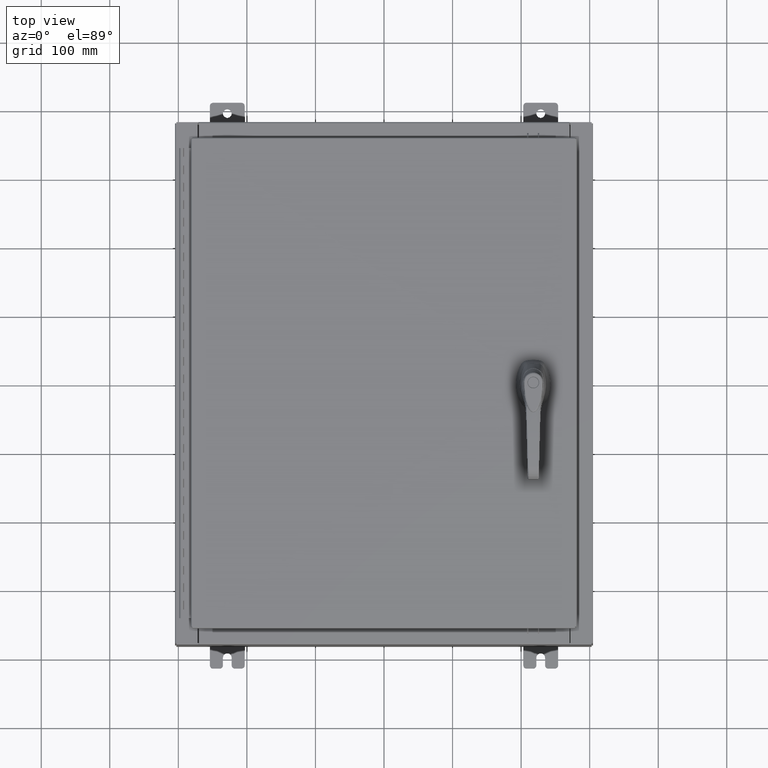
[diagram: clean part render]
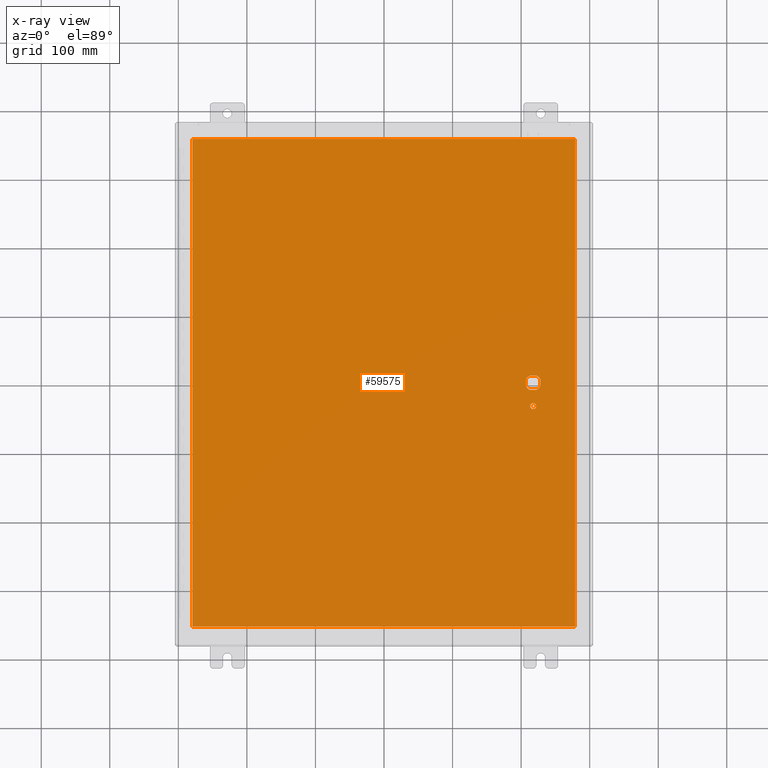
[diagram: x-ray — body ghosted, one internal face saturated and labeled with its STEP entity id]
A machine part, top view, then the same camera in x-ray: the body is ghosted and one INTERNAL B-rep face — a face not visible from any outside direction — is saturated and labeled: STEP entity #59575.
In plain terms, the highlighted planar face has unit normal (0, 0, -1).
Its self-contained STEP definition (entity closure, byte-faithful):
#3461 = DIRECTION ( 'NONE',  ( 1.000000000000000000, -0.0000000000000000000, -0.0000000000000000000 ) ) ;
#3526 = VERTEX_POINT ( 'NONE', #42031 ) ;
#4470 = ORIENTED_EDGE ( 'NONE', *, *, #36736, .T. ) ;
#4782 = DIRECTION ( 'NONE',  ( 0.0000000000000000000, -1.000000000000000000, 0.0000000000000000000 ) ) ;
#4838 = DIRECTION ( 'NONE',  ( 0.0000000000000000000, 0.0000000000000000000, -1.000000000000000000 ) ) ;
#7471 = EDGE_LOOP ( 'NONE', ( #86958, #76521, #91623, #48466, #51248, #21490, #71872, #79646 ) ) ;
#7579 = VECTOR ( 'NONE', #90998, 39.37007874015748100 ) ;
#10252 = CARTESIAN_POINT ( 'NONE',  ( 8.577999999999999400, 0.0000000000000000000, -0.07470000000000003000 ) ) ;
#10349 = DIRECTION ( 'NONE',  ( -0.0000000000000000000, -0.0000000000000000000, 1.000000000000000000 ) ) ;
#11268 = EDGE_CURVE ( 'NONE', #3526, #70370, #73708, .T. ) ;
#11701 = CARTESIAN_POINT ( 'NONE',  ( 8.577999999999999400, 0.0000000000000000000, -0.07470000000000003000 ) ) ;
#11764 = VERTEX_POINT ( 'NONE', #20033 ) ;
#11845 = CIRCLE ( 'NONE', #39202, 0.1715000000000011500 ) ;
#11931 = EDGE_CURVE ( 'NONE', #113478, #35717, #33905, .T. ) ;
#12027 = AXIS2_PLACEMENT_3D ( 'NONE', #104134, #4838, #68151 ) ;
#13245 = AXIS2_PLACEMENT_3D ( 'NONE', #71834, #17549, #80936 ) ;
#14032 = CARTESIAN_POINT ( 'NONE',  ( -10.99030000000000000, 14.00630000000000100, -0.07470000000000019700 ) ) ;
#14166 = ORIENTED_EDGE ( 'NONE', *, *, #11931, .F. ) ;
#14516 = VERTEX_POINT ( 'NONE', #76639 ) ;
#16302 = LINE ( 'NONE', #22786, #109784 ) ;
#17549 = DIRECTION ( 'NONE',  ( -0.0000000000000000000, -0.0000000000000000000, 1.000000000000000000 ) ) ;
#18528 = CARTESIAN_POINT ( 'NONE',  ( 8.980999999999925300, 2.450686610769032800E-014, -0.07470000000000003000 ) ) ;
#19318 = DIRECTION ( 'NONE',  ( -1.000000000000000000, 8.881784197001256300E-016, 0.0000000000000000000 ) ) ;
#20033 = CARTESIAN_POINT ( 'NONE',  ( 8.406499999999999400, -1.338000000000000100, -0.07470000000000003000 ) ) ;
#20782 = DIRECTION ( 'NONE',  ( -1.000000000000000000, 1.776356839400251300E-015, 0.0000000000000000000 ) ) ;
#21490 = ORIENTED_EDGE ( 'NONE', *, *, #38106, .T. ) ;
#21966 = CIRCLE ( 'NONE', #113293, 0.4499999999999156900 ) ;
#22786 = CARTESIAN_POINT ( 'NONE',  ( 0.0000000000000000000, -0.4029999999999252000, -0.07470000000000003000 ) ) ;
#23723 = EDGE_CURVE ( 'NONE', #70370, #77574, #82563, .T. ) ;
#24047 = EDGE_CURVE ( 'NONE', #77574, #50909, #110864, .T. ) ;
#25444 = DIRECTION ( 'NONE',  ( -0.0000000000000000000, -0.0000000000000000000, 1.000000000000000000 ) ) ;
#28032 = VECTOR ( 'NONE', #95582, 39.37007874015748100 ) ;
#29426 = LINE ( 'NONE', #68094, #98845 ) ;
#29720 = LINE ( 'NONE', #101884, #75086 ) ;
#30363 = VERTEX_POINT ( 'NONE', #92439 ) ;
#30446 = EDGE_CURVE ( 'NONE', #95265, #113478, #73434, .T. ) ;
#30942 = ORIENTED_EDGE ( 'NONE', *, *, #42917, .F. ) ;
#31600 = LINE ( 'NONE', #18528, #7579 ) ;
#33866 = AXIS2_PLACEMENT_3D ( 'NONE', #10252, #73600, #19318 ) ;
#33905 = LINE ( 'NONE', #48482, #36714 ) ;
#35717 = VERTEX_POINT ( 'NONE', #51421 ) ;
#35942 = DIRECTION ( 'NONE',  ( -1.000000000000000000, 0.0000000000000000000, 0.0000000000000000000 ) ) ;
#36642 = CARTESIAN_POINT ( 'NONE',  ( -10.99030000000000000, -14.00629999999999600, -0.07470000000000000300 ) ) ;
#36714 = VECTOR ( 'NONE', #3461, 39.37007874015748100 ) ;
#36736 = EDGE_CURVE ( 'NONE', #11764, #30363, #79222, .T. ) ;
#38106 = EDGE_CURVE ( 'NONE', #50909, #14516, #29426, .T. ) ;
#38352 = FACE_OUTER_BOUND ( 'NONE', #70238, .T. ) ;
#39149 = CARTESIAN_POINT ( 'NONE',  ( 8.577999999999999400, -1.338000000000000100, -0.07470000000000003000 ) ) ;
#39202 = AXIS2_PLACEMENT_3D ( 'NONE', #64594, #10349, #73705 ) ;
#42031 = CARTESIAN_POINT ( 'NONE',  ( 8.980999999999925300, 0.2002273707563080300, -0.07470000000000003000 ) ) ;
#42917 = EDGE_CURVE ( 'NONE', #85347, #95265, #65711, .T. ) ;
#43050 = EDGE_CURVE ( 'NONE', #30363, #11764, #11845, .T. ) ;
#43609 = CARTESIAN_POINT ( 'NONE',  ( 8.778227370756310300, 0.4029999999999250300, -0.07470000000000003000 ) ) ;
#43670 = CARTESIAN_POINT ( 'NONE',  ( 8.980999999999925300, -0.2002273707563075900, -0.07470000000000003000 ) ) ;
#48252 = DIRECTION ( 'NONE',  ( -1.000000000000000000, 0.0000000000000000000, 0.0000000000000000000 ) ) ;
#48466 = ORIENTED_EDGE ( 'NONE', *, *, #23723, .T. ) ;
#48482 = CARTESIAN_POINT ( 'NONE',  ( -10.99029999999999600, -14.00629999999999800, -0.07470000000000019700 ) ) ;
#48742 = AXIS2_PLACEMENT_3D ( 'NONE', #39149, #102516, #48252 ) ;
#50074 = DIRECTION ( 'NONE',  ( 1.000000000000000000, 0.0000000000000000000, 0.0000000000000000000 ) ) ;
#50909 = VERTEX_POINT ( 'NONE', #97767 ) ;
#51248 = ORIENTED_EDGE ( 'NONE', *, *, #24047, .T. ) ;
#51421 = CARTESIAN_POINT ( 'NONE',  ( 10.99030000000000000, -14.00629999999999800, -0.07470000000000000300 ) ) ;
#56459 = VERTEX_POINT ( 'NONE', #83964 ) ;
#56653 = EDGE_CURVE ( 'NONE', #14516, #84983, #62026, .T. ) ;
#56956 = ORIENTED_EDGE ( 'NONE', *, *, #115427, .F. ) ;
#59575 = ADVANCED_FACE ( 'NONE', ( #86537, #38352, #62489 ), #112852, .T. ) ;
#61844 = CARTESIAN_POINT ( 'NONE',  ( 10.99030000000000000, 14.00629999999999800, -0.07470000000000019700 ) ) ;
#62026 = CIRCLE ( 'NONE', #33866, 0.4499999999999156900 ) ;
#62489 = FACE_BOUND ( 'NONE', #7471, .T. ) ;
#62855 = VECTOR ( 'NONE', #99035, 39.37007874015748100 ) ;
#64594 = CARTESIAN_POINT ( 'NONE',  ( 8.577999999999999400, -1.338000000000000100, -0.07470000000000003000 ) ) ;
#65711 = LINE ( 'NONE', #61844, #62855 ) ;
#67594 = EDGE_CURVE ( 'NONE', #56459, #73106, #21966, .T. ) ;
#68094 = CARTESIAN_POINT ( 'NONE',  ( 8.175000000000073500, 0.0000000000000000000, -0.07470000000000003000 ) ) ;
#68151 = DIRECTION ( 'NONE',  ( -1.000000000000000000, 0.0000000000000000000, -0.0000000000000000000 ) ) ;
#69529 = EDGE_CURVE ( 'NONE', #3526, #73106, #31600, .T. ) ;
#70238 = EDGE_LOOP ( 'NONE', ( #56956, #14166, #84112, #30942 ) ) ;
#70370 = VERTEX_POINT ( 'NONE', #43609 ) ;
#71834 = CARTESIAN_POINT ( 'NONE',  ( 8.577999999999999400, 0.0000000000000000000, -0.07470000000000003000 ) ) ;
#71872 = ORIENTED_EDGE ( 'NONE', *, *, #56653, .T. ) ;
#73106 = VERTEX_POINT ( 'NONE', #43670 ) ;
#73434 = LINE ( 'NONE', #14032, #28032 ) ;
#73600 = DIRECTION ( 'NONE',  ( -0.0000000000000000000, -0.0000000000000000000, 1.000000000000000000 ) ) ;
#73702 = CARTESIAN_POINT ( 'NONE',  ( 10.99030000000000000, 14.00629999999999800, -0.07470000000000000300 ) ) ;
#73705 = DIRECTION ( 'NONE',  ( -1.000000000000000000, 0.0000000000000000000, 0.0000000000000000000 ) ) ;
#73708 = CIRCLE ( 'NONE', #13245, 0.4499999999999156900 ) ;
#75062 = DIRECTION ( 'NONE',  ( -0.0000000000000000000, -0.0000000000000000000, 1.000000000000000000 ) ) ;
#75086 = VECTOR ( 'NONE', #111020, 39.37007874015748100 ) ;
#75269 = EDGE_CURVE ( 'NONE', #84983, #56459, #16302, .T. ) ;
#76521 = ORIENTED_EDGE ( 'NONE', *, *, #69529, .F. ) ;
#76639 = CARTESIAN_POINT ( 'NONE',  ( 8.175000000000073500, -0.2002273707563079800, -0.07470000000000003000 ) ) ;
#77574 = VERTEX_POINT ( 'NONE', #114289 ) ;
#79222 = CIRCLE ( 'NONE', #48742, 0.1715000000000011500 ) ;
#79646 = ORIENTED_EDGE ( 'NONE', *, *, #75269, .T. ) ;
#79718 = CARTESIAN_POINT ( 'NONE',  ( 8.577999999999999400, 0.0000000000000000000, -0.07470000000000003000 ) ) ;
#79765 = VECTOR ( 'NONE', #35942, 39.37007874015748100 ) ;
#80936 = DIRECTION ( 'NONE',  ( -1.000000000000000000, 0.0000000000000000000, 0.0000000000000000000 ) ) ;
#81133 = CARTESIAN_POINT ( 'NONE',  ( 0.0000000000000000000, 0.4029999999999252000, -0.07470000000000003000 ) ) ;
#82563 = LINE ( 'NONE', #81133, #79765 ) ;
#83964 = CARTESIAN_POINT ( 'NONE',  ( 8.778227370756310300, -0.4029999999999252000, -0.07470000000000003000 ) ) ;
#84112 = ORIENTED_EDGE ( 'NONE', *, *, #30446, .F. ) ;
#84983 = VERTEX_POINT ( 'NONE', #105792 ) ;
#85347 = VERTEX_POINT ( 'NONE', #73702 ) ;
#86537 = FACE_BOUND ( 'NONE', #113137, .T. ) ;
#86958 = ORIENTED_EDGE ( 'NONE', *, *, #67594, .T. ) ;
#88800 = DIRECTION ( 'NONE',  ( -1.000000000000000000, 0.0000000000000000000, 0.0000000000000000000 ) ) ;
#90998 = DIRECTION ( 'NONE',  ( 2.728745808672812900E-015, -1.000000000000000000, 0.0000000000000000000 ) ) ;
#91623 = ORIENTED_EDGE ( 'NONE', *, *, #11268, .T. ) ;
#92439 = CARTESIAN_POINT ( 'NONE',  ( 8.749500000000001200, -1.338000000000000100, -0.07470000000000003000 ) ) ;
#95265 = VERTEX_POINT ( 'NONE', #105872 ) ;
#95582 = DIRECTION ( 'NONE',  ( 0.0000000000000000000, -1.000000000000000000, 0.0000000000000000000 ) ) ;
#97767 = CARTESIAN_POINT ( 'NONE',  ( 8.175000000000073500, 0.2002273707563080300, -0.07470000000000003000 ) ) ;
#98845 = VECTOR ( 'NONE', #4782, 39.37007874015748100 ) ;
#99035 = DIRECTION ( 'NONE',  ( -1.000000000000000000, -0.0000000000000000000, -0.0000000000000000000 ) ) ;
#101884 = CARTESIAN_POINT ( 'NONE',  ( 10.99030000000000000, -14.00629999999999800, -0.07470000000000019700 ) ) ;
#102516 = DIRECTION ( 'NONE',  ( -0.0000000000000000000, -0.0000000000000000000, 1.000000000000000000 ) ) ;
#104134 = CARTESIAN_POINT ( 'NONE',  ( 0.0000000000000000000, 0.0000000000000000000, -0.07470000000000000300 ) ) ;
#105792 = CARTESIAN_POINT ( 'NONE',  ( 8.377772629243690300, -0.4029999999999250300, -0.07470000000000003000 ) ) ;
#105872 = CARTESIAN_POINT ( 'NONE',  ( -10.99030000000000000, 14.00629999999999800, -0.07470000000000000300 ) ) ;
#106515 = AXIS2_PLACEMENT_3D ( 'NONE', #79718, #25444, #88800 ) ;
#109784 = VECTOR ( 'NONE', #50074, 39.37007874015748100 ) ;
#110726 = ORIENTED_EDGE ( 'NONE', *, *, #43050, .T. ) ;
#110864 = CIRCLE ( 'NONE', #106515, 0.4499999999999156900 ) ;
#111020 = DIRECTION ( 'NONE',  ( 0.0000000000000000000, 1.000000000000000000, 0.0000000000000000000 ) ) ;
#112852 = PLANE ( 'NONE',  #12027 ) ;
#113137 = EDGE_LOOP ( 'NONE', ( #110726, #4470 ) ) ;
#113293 = AXIS2_PLACEMENT_3D ( 'NONE', #11701, #75062, #20782 ) ;
#113478 = VERTEX_POINT ( 'NONE', #36642 ) ;
#114289 = CARTESIAN_POINT ( 'NONE',  ( 8.377772629243690300, 0.4029999999999252000, -0.07470000000000003000 ) ) ;
#115427 = EDGE_CURVE ( 'NONE', #35717, #85347, #29720, .T. ) ;